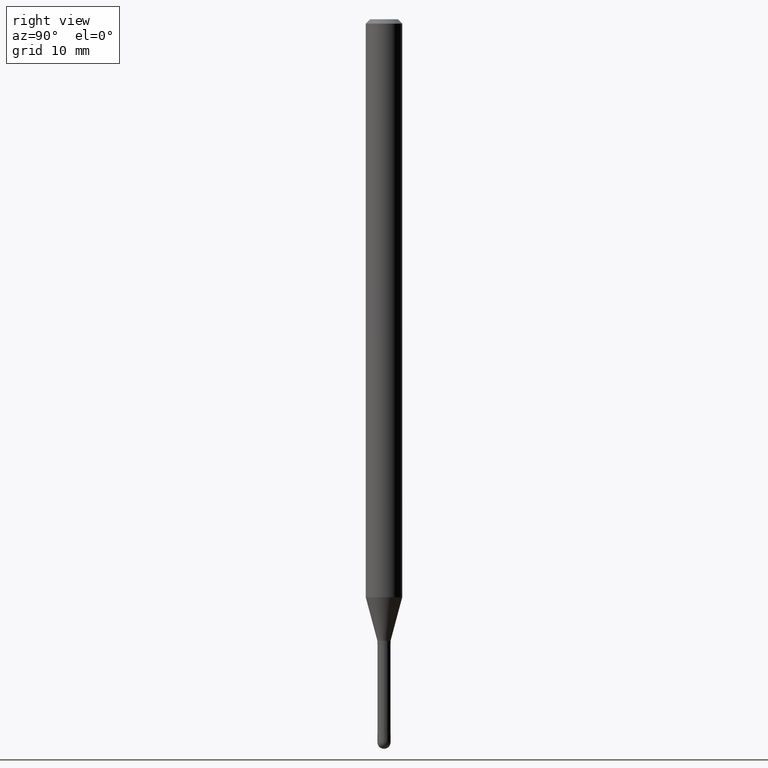
[diagram: clean part render]
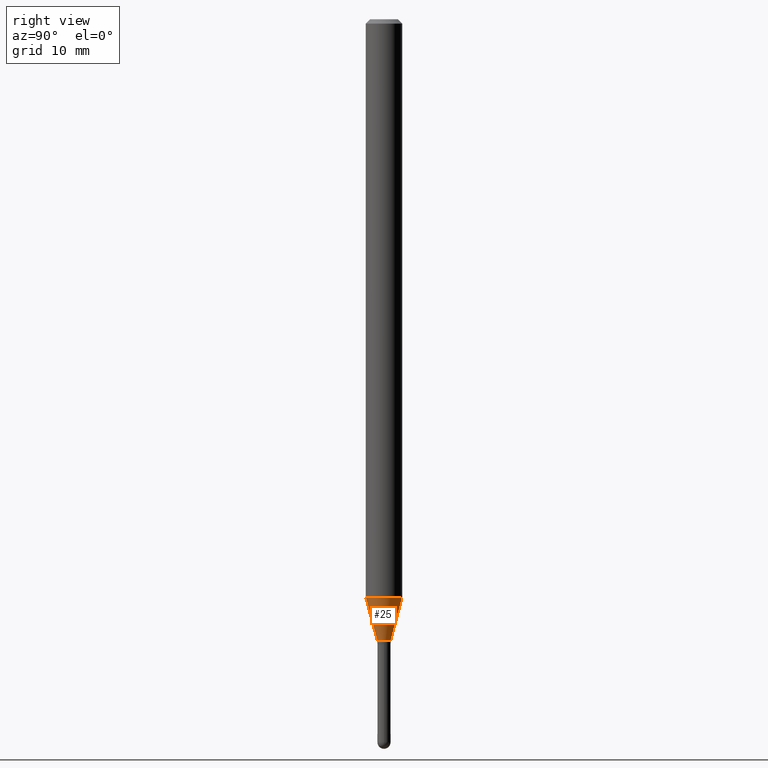
[diagram: same view with one face highlighted and labeled with its STEP entity id]
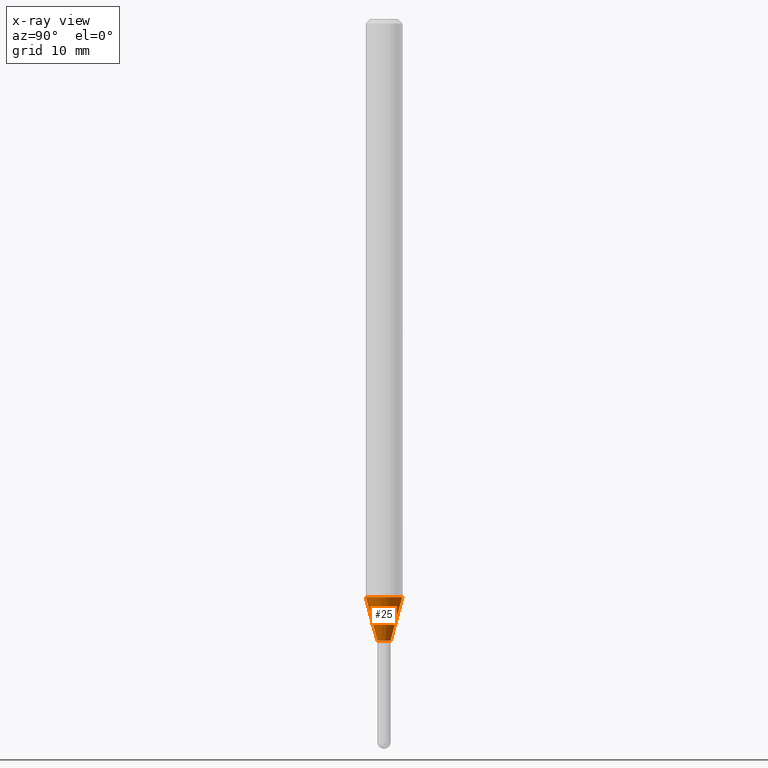
[diagram: x-ray of the same camera — body ghosted, the highlighted face saturated]
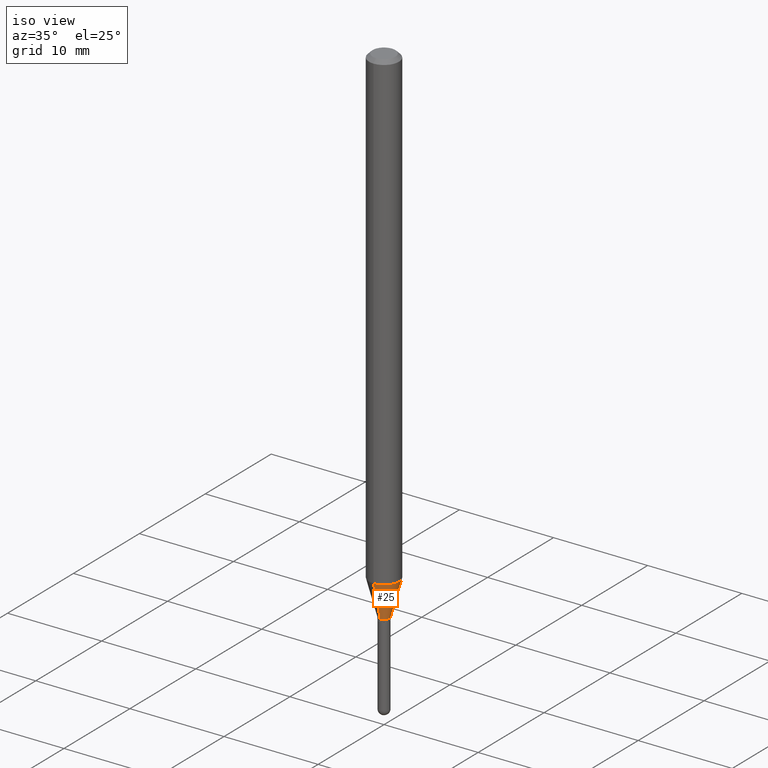
[diagram: same view with one face highlighted and labeled with its STEP entity id]
A machine part, right view. The second image highlights one B-rep face of the part: STEP entity #25.
The next image is the same camera in x-ray: the body ghosted, the highlighted face saturated — about 0% of this face is hidden behind the body in this view.
A second angle (iso view) of the same face is appended — the face is thin or edge-on in the first view.
In plain terms, the highlighted conical surface has half-angle 15 deg.
Its self-contained STEP definition (entity closure, byte-faithful):
#10 = EDGE_CURVE ( 'NONE', #356, #237, #53, .T. ) ;
#19 = CARTESIAN_POINT ( 'NONE',  ( -4.364351673553434010E-16, -0.06250000000000693889, -1.980717967697244175 ) ) ;
#25 = ADVANCED_FACE ( 'NONE', ( #474 ), #130, .T. ) ;
#53 = CIRCLE ( 'NONE', #445, 0.06250000000000000000 ) ;
#111 = VERTEX_POINT ( 'NONE', #504 ) ;
#120 = LINE ( 'NONE', #508, #137 ) ;
#126 = DIRECTION ( 'NONE',  ( -6.982962677686266711E-15, -1.000000000000000000, 0.000000000000000000 ) ) ;
#130 = CONICAL_SURFACE ( 'NONE', #278, 0.02249999999999964875, 0.2617993877991509621 ) ;
#137 = VECTOR ( 'NONE', #425, 39.37007874015748854 ) ;
#145 = EDGE_CURVE ( 'NONE', #220, #111, #169, .T. ) ;
#147 = CARTESIAN_POINT ( 'NONE',  ( 4.843709024906387274E-29, -6.915747195846810751E-15, -1.980717967697244397 ) ) ;
#169 = CIRCLE ( 'NONE', #362, 0.02249999999999964875 ) ;
#187 = CARTESIAN_POINT ( 'NONE',  ( 4.440892098501108353E-16, 0.06249999999999306804, -1.980717967697244841 ) ) ;
#198 = LINE ( 'NONE', #465, #488 ) ;
#216 = CARTESIAN_POINT ( 'NONE',  ( -1.571166602478864611E-16, -0.02250000000000708378, -2.129999999999999893 ) ) ;
#220 = VERTEX_POINT ( 'NONE', #216 ) ;
#237 = VERTEX_POINT ( 'NONE', #187 ) ;
#249 = DIRECTION ( 'NONE',  ( -2.445430951756154079E-29, 3.491535548539988804E-15, 1.000000000000000000 ) ) ;
#262 = EDGE_CURVE ( 'NONE', #111, #237, #198, .T. ) ;
#266 = EDGE_CURVE ( 'NONE', #220, #356, #120, .T. ) ;
#278 = AXIS2_PLACEMENT_3D ( 'NONE', #439, #433, #326 ) ;
#282 = DIRECTION ( 'NONE',  ( -6.982962677686265922E-15, -1.000000000000000000, 4.370956789862821150E-15 ) ) ;
#294 = ORIENTED_EDGE ( 'NONE', *, *, #10, .F. ) ;
#313 = EDGE_LOOP ( 'NONE', ( #492, #486, #294, #498 ) ) ;
#322 = CARTESIAN_POINT ( 'NONE',  ( 5.208767927240607101E-29, -7.436970718390176776E-15, -2.129999999999999893 ) ) ;
#326 = DIRECTION ( 'NONE',  ( -6.982962677686266711E-15, -1.000000000000000000, 0.000000000000000000 ) ) ;
#356 = VERTEX_POINT ( 'NONE', #19 ) ;
#360 = DIRECTION ( 'NONE',  ( 1.839019923739605048E-15, 0.2588190451025256245, 0.9659258262890669799 ) ) ;
#362 = AXIS2_PLACEMENT_3D ( 'NONE', #322, #470, #126 ) ;
#425 = DIRECTION ( 'NONE',  ( -1.807323732225334872E-15, -0.2588190451025188521, 0.9659258262890687563 ) ) ;
#433 = DIRECTION ( 'NONE',  ( -2.445430951756154079E-29, 3.491535548539988804E-15, 1.000000000000000000 ) ) ;
#439 = CARTESIAN_POINT ( 'NONE',  ( 5.208767927240607101E-29, -7.436970718390176776E-15, -2.129999999999999893 ) ) ;
#445 = AXIS2_PLACEMENT_3D ( 'NONE', #147, #249, #282 ) ;
#465 = CARTESIAN_POINT ( 'NONE',  ( 1.598721155460720862E-16, 0.02249999999999221373, -2.129999999999999893 ) ) ;
#470 = DIRECTION ( 'NONE',  ( -2.445430951756154079E-29, 3.491535548539988804E-15, 1.000000000000000000 ) ) ;
#474 = FACE_OUTER_BOUND ( 'NONE', #313, .T. ) ;
#486 = ORIENTED_EDGE ( 'NONE', *, *, #262, .T. ) ;
#488 = VECTOR ( 'NONE', #360, 39.37007874015748143 ) ;
#492 = ORIENTED_EDGE ( 'NONE', *, *, #145, .T. ) ;
#498 = ORIENTED_EDGE ( 'NONE', *, *, #266, .F. ) ;
#504 = CARTESIAN_POINT ( 'NONE',  ( 3.019806626980916580E-16, 0.02249999999999221373, -2.129999999999999893 ) ) ;
#508 = CARTESIAN_POINT ( 'NONE',  ( -1.571166602478864611E-16, -0.02250000000000708378, -2.129999999999999893 ) ) ;